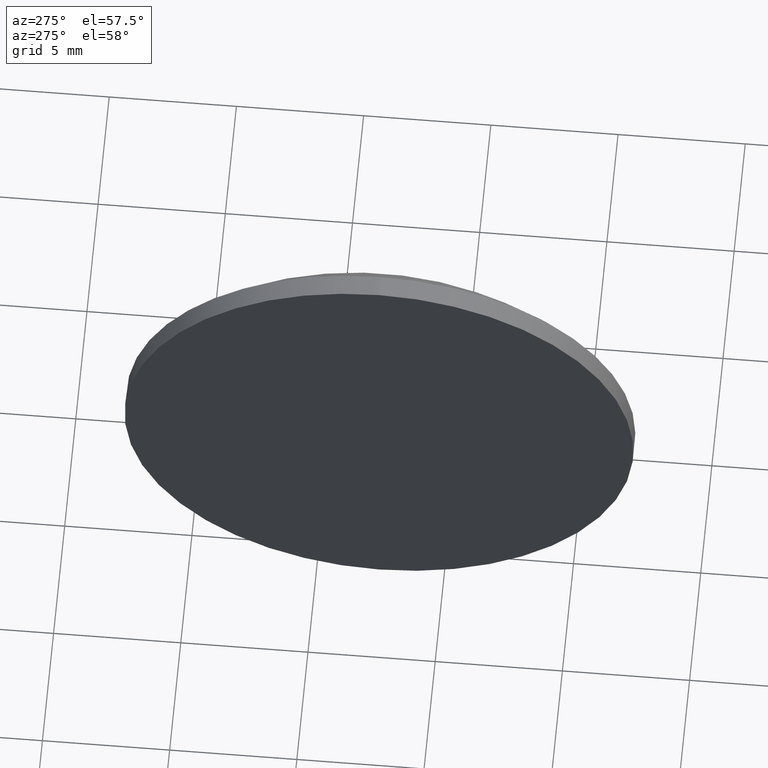
[diagram: clean part render]
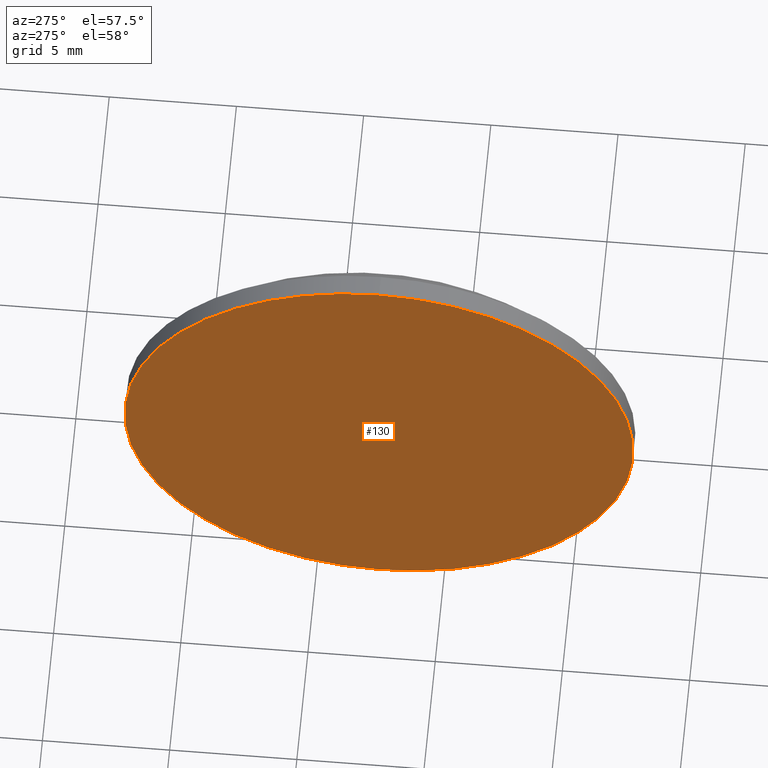
[diagram: same view with one face highlighted and labeled with its STEP entity id]
A machine part, auxiliary view. The second image highlights one B-rep face of the part: STEP entity #130.
In plain terms, the highlighted planar face has unit normal (1, 0, 0).
Its self-contained STEP definition (entity closure, byte-faithful):
#10 = EDGE_CURVE ( 'NONE', #139, #99, #42, .T. ) ;
#16 = ORIENTED_EDGE ( 'NONE', *, *, #10, .T. ) ;
#28 = CARTESIAN_POINT ( 'NONE',  ( 433.7916024094511200, 97.54092323461679800, 0.0000000000000000000 ) ) ;
#35 = ORIENTED_EDGE ( 'NONE', *, *, #113, .T. ) ;
#39 = DIRECTION ( 'NONE',  ( 0.0000000000000000000, 0.0000000000000000000, 1.000000000000000000 ) ) ;
#42 = CIRCLE ( 'NONE', #52, 9.999999999999994700 ) ;
#52 = AXIS2_PLACEMENT_3D ( 'NONE', #62, #85, #129 ) ;
#55 = CARTESIAN_POINT ( 'NONE',  ( 433.7916024094511200, 97.54092323461679800, -9.999999999999994700 ) ) ;
#62 = CARTESIAN_POINT ( 'NONE',  ( 433.7916024094511200, 97.54092323461679800, 0.0000000000000000000 ) ) ;
#76 = AXIS2_PLACEMENT_3D ( 'NONE', #137, #103, #89 ) ;
#80 = FACE_OUTER_BOUND ( 'NONE', #159, .T. ) ;
#83 = AXIS2_PLACEMENT_3D ( 'NONE', #28, #183, #39 ) ;
#85 = DIRECTION ( 'NONE',  ( -1.000000000000000000, -0.0000000000000000000, -0.0000000000000000000 ) ) ;
#89 = DIRECTION ( 'NONE',  ( 0.0000000000000000000, 0.0000000000000000000, -1.000000000000000000 ) ) ;
#99 = VERTEX_POINT ( 'NONE', #55 ) ;
#103 = DIRECTION ( 'NONE',  ( 1.000000000000000000, 0.0000000000000000000, 0.0000000000000000000 ) ) ;
#113 = EDGE_CURVE ( 'NONE', #99, #139, #181, .T. ) ;
#120 = CARTESIAN_POINT ( 'NONE',  ( 433.7916024094511200, 97.54092323461679800, 9.999999999999994700 ) ) ;
#129 = DIRECTION ( 'NONE',  ( 0.0000000000000000000, 0.0000000000000000000, 1.000000000000000000 ) ) ;
#130 = ADVANCED_FACE ( 'NONE', ( #80 ), #164, .F. ) ;
#137 = CARTESIAN_POINT ( 'NONE',  ( 433.7916024094511200, 97.54092323461679800, 0.0000000000000000000 ) ) ;
#139 = VERTEX_POINT ( 'NONE', #120 ) ;
#159 = EDGE_LOOP ( 'NONE', ( #16, #35 ) ) ;
#164 = PLANE ( 'NONE',  #76 ) ;
#181 = CIRCLE ( 'NONE', #83, 9.999999999999994700 ) ;
#183 = DIRECTION ( 'NONE',  ( -1.000000000000000000, -0.0000000000000000000, -0.0000000000000000000 ) ) ;